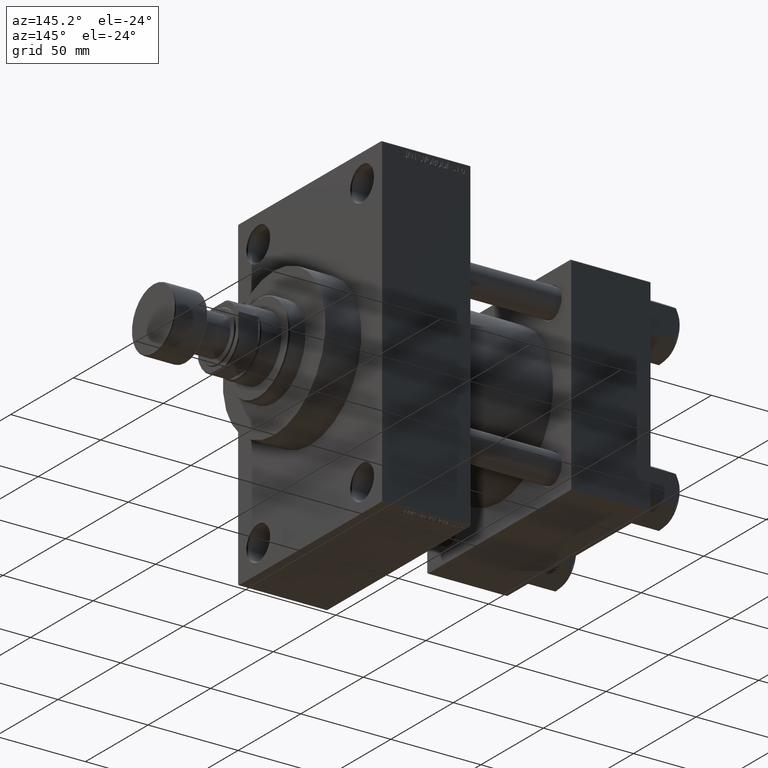
[diagram: clean part render]
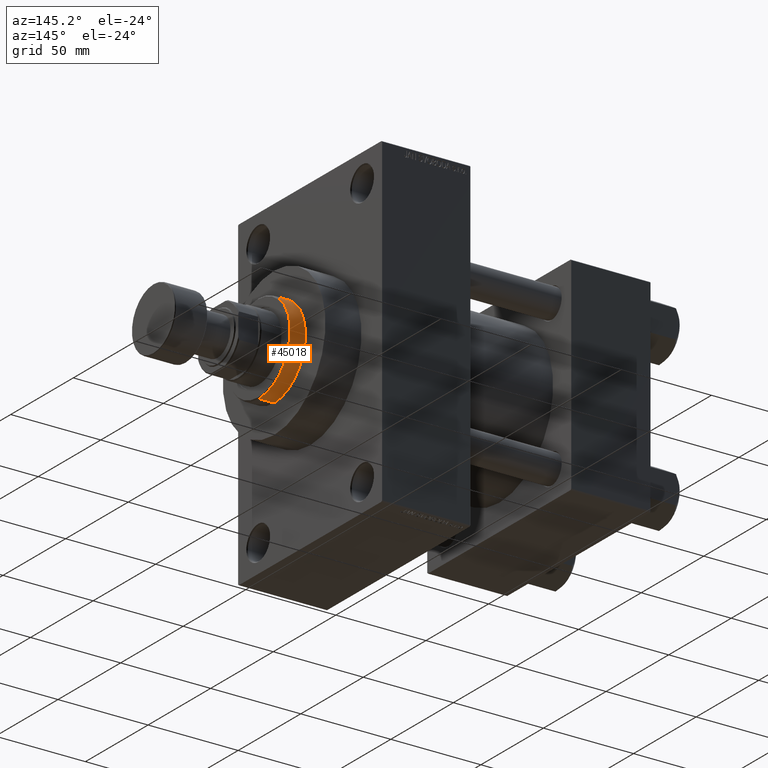
[diagram: same view with one face highlighted and labeled with its STEP entity id]
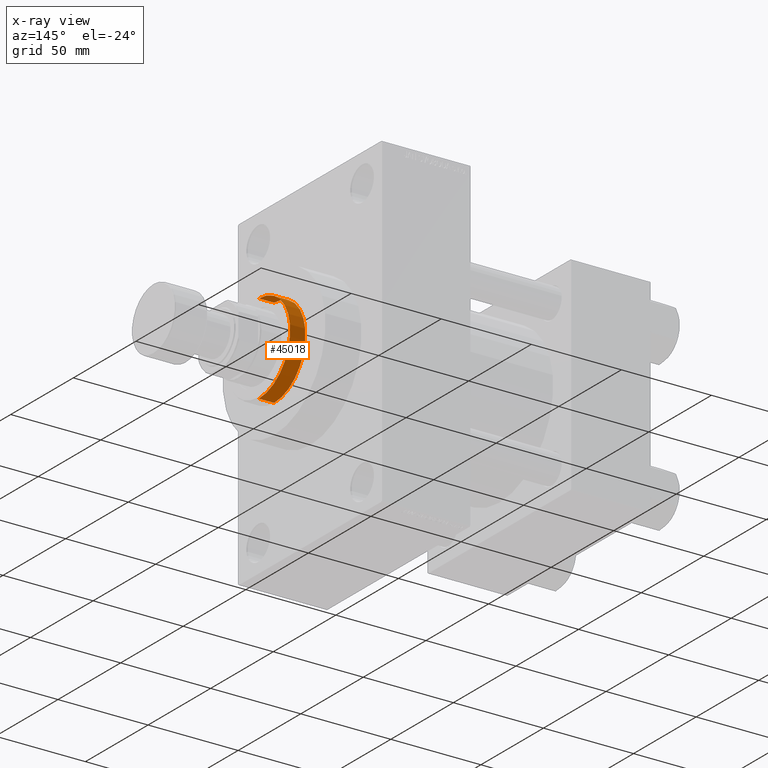
[diagram: x-ray of the same camera — body ghosted, the highlighted face saturated]
A machine part, auxiliary view. The second image highlights one B-rep face of the part: STEP entity #45018.
The next image is the same camera in x-ray: the body ghosted, the highlighted face saturated — about 0% of this face is hidden behind the body in this view.
In plain terms, the highlighted cylindrical surface (partial cylindrical patch) has radius 25 mm, axis along (-1, -0, 0).
Its self-contained STEP definition (entity closure, byte-faithful):
#202 = VECTOR ( 'NONE', #32065, 1000.000000000000000 ) ;
#459 = CARTESIAN_POINT ( 'NONE',  ( 25.00000000000000000, 3.061616997868383043E-15, 43.25999999999999801 ) ) ;
#4537 = AXIS2_PLACEMENT_3D ( 'NONE', #44248, #33064, #10906 ) ;
#5753 = EDGE_CURVE ( 'NONE', #39512, #18354, #6517, .T. ) ;
#6085 = CIRCLE ( 'NONE', #8405, 25.00000000000000000 ) ;
#6517 = LINE ( 'NONE', #25535, #29688 ) ;
#6562 = ORIENTED_EDGE ( 'NONE', *, *, #7976, .F. ) ;
#7976 = EDGE_CURVE ( 'NONE', #12615, #36806, #17208, .T. ) ;
#8405 = AXIS2_PLACEMENT_3D ( 'NONE', #43960, #25477, #40323 ) ;
#9419 = CARTESIAN_POINT ( 'NONE',  ( -25.00000000000000000, 0.000000000000000000, 52.25999999999999801 ) ) ;
#10906 = DIRECTION ( 'NONE',  ( -1.000000000000000000, 0.000000000000000000, 0.000000000000000000 ) ) ;
#11704 = ORIENTED_EDGE ( 'NONE', *, *, #45375, .T. ) ;
#12615 = VERTEX_POINT ( 'NONE', #15818 ) ;
#15266 = CYLINDRICAL_SURFACE ( 'NONE', #4537, 25.00000000000000000 ) ;
#15818 = CARTESIAN_POINT ( 'NONE',  ( -25.00000000000000000, 0.000000000000000000, 51.75999999999996959 ) ) ;
#17208 = LINE ( 'NONE', #9419, #202 ) ;
#18354 = VERTEX_POINT ( 'NONE', #459 ) ;
#18664 = AXIS2_PLACEMENT_3D ( 'NONE', #23265, #45880, #20098 ) ;
#20098 = DIRECTION ( 'NONE',  ( 1.000000000000000000, 0.000000000000000000, 0.000000000000000000 ) ) ;
#21006 = CIRCLE ( 'NONE', #18664, 25.00000000000000000 ) ;
#23265 = CARTESIAN_POINT ( 'NONE',  ( 0.000000000000000000, 0.000000000000000000, 43.25999999999999801 ) ) ;
#24891 = ORIENTED_EDGE ( 'NONE', *, *, #5753, .T. ) ;
#25477 = DIRECTION ( 'NONE',  ( 0.000000000000000000, 0.000000000000000000, -1.000000000000000000 ) ) ;
#25535 = CARTESIAN_POINT ( 'NONE',  ( 25.00000000000000000, 3.061616997868383043E-15, 52.25999999999999801 ) ) ;
#25538 = EDGE_CURVE ( 'NONE', #18354, #36806, #21006, .T. ) ;
#26237 = FACE_OUTER_BOUND ( 'NONE', #34346, .T. ) ;
#28217 = DIRECTION ( 'NONE',  ( -0.000000000000000000, -0.000000000000000000, -1.000000000000000000 ) ) ;
#29022 = CARTESIAN_POINT ( 'NONE',  ( 25.00000000000000000, 3.061616997868383043E-15, 51.75999999999996959 ) ) ;
#29688 = VECTOR ( 'NONE', #28217, 1000.000000000000000 ) ;
#32065 = DIRECTION ( 'NONE',  ( -0.000000000000000000, -0.000000000000000000, -1.000000000000000000 ) ) ;
#33064 = DIRECTION ( 'NONE',  ( -0.000000000000000000, -0.000000000000000000, -1.000000000000000000 ) ) ;
#34346 = EDGE_LOOP ( 'NONE', ( #11704, #24891, #43348, #6562 ) ) ;
#36806 = VERTEX_POINT ( 'NONE', #41871 ) ;
#39512 = VERTEX_POINT ( 'NONE', #29022 ) ;
#40323 = DIRECTION ( 'NONE',  ( 1.000000000000000000, 0.000000000000000000, 0.000000000000000000 ) ) ;
#41871 = CARTESIAN_POINT ( 'NONE',  ( -25.00000000000000000, 0.000000000000000000, 43.25999999999999801 ) ) ;
#43348 = ORIENTED_EDGE ( 'NONE', *, *, #25538, .T. ) ;
#43960 = CARTESIAN_POINT ( 'NONE',  ( 0.000000000000000000, 0.000000000000000000, 51.75999999999996959 ) ) ;
#44248 = CARTESIAN_POINT ( 'NONE',  ( 0.000000000000000000, 0.000000000000000000, 52.25999999999999801 ) ) ;
#45018 = ADVANCED_FACE ( 'NONE', ( #26237 ), #15266, .T. ) ;
#45375 = EDGE_CURVE ( 'NONE', #12615, #39512, #6085, .T. ) ;
#45880 = DIRECTION ( 'NONE',  ( 0.000000000000000000, 0.000000000000000000, 1.000000000000000000 ) ) ;